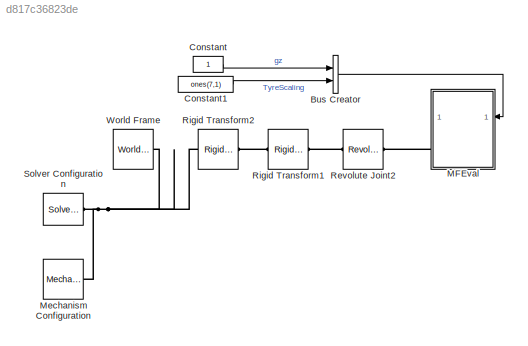
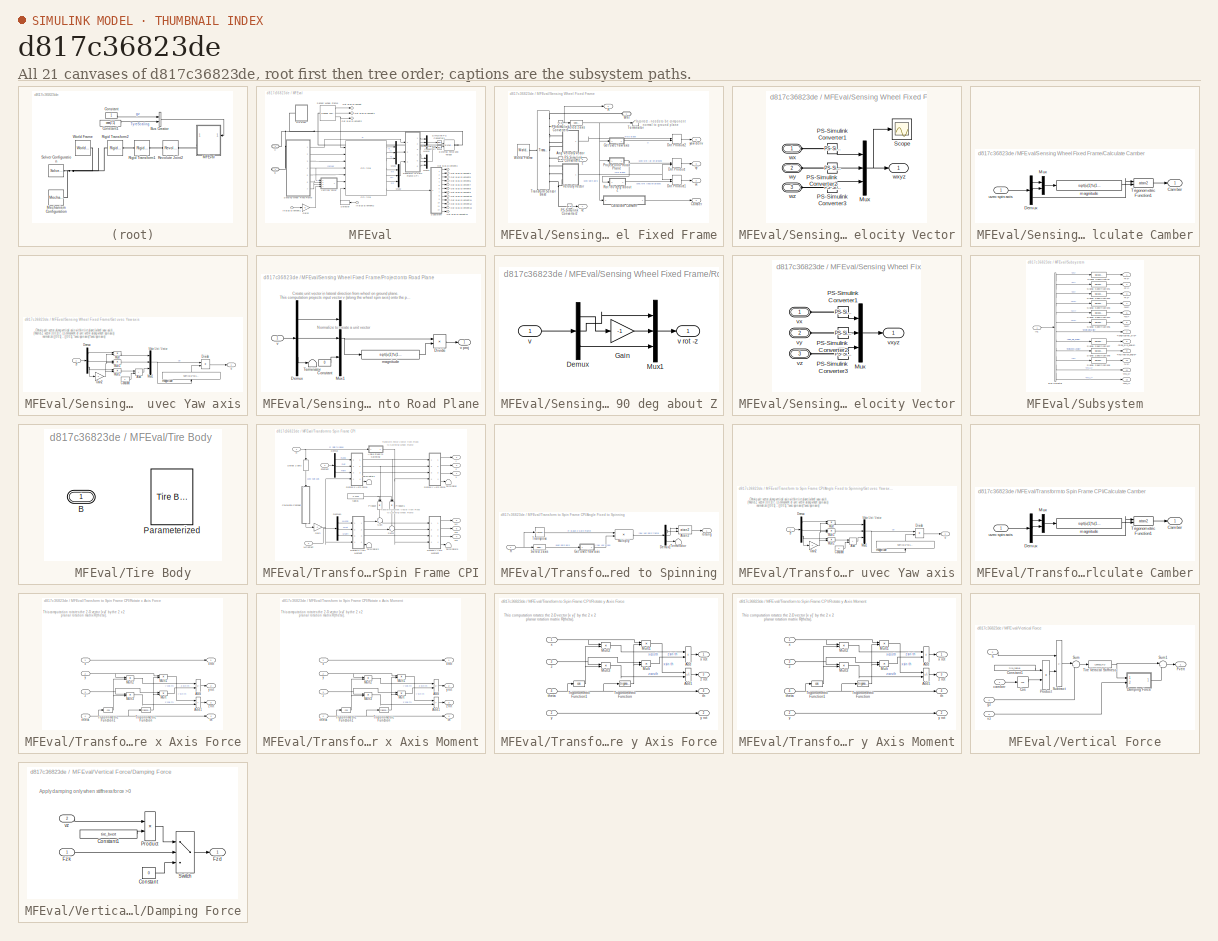
[diagram: thumbnail index - all 21 canvases of the model, root first then tree order]
MODEL slx_d817c36823de
KIND model
CONFIG AbsTol = auto
CONFIG EnableMultiTasking = off
CONFIG FixedStep = auto
CONFIG MaxStep = auto
CONFIG MinStep = auto
CONFIG RelTol = 1e-3
CONFIG SampleTimeConstraint = Unconstrained
CONFIG SolverName = VariableStepAuto
CONFIG StartTime = 0.0
CONFIG StopTime = 10.0
BLOCK [BusCreator] Bus Creator
  DisplayOption = bar
  InheritFromInputs = on
  Inputs = 2
  NameLocation = top
  Ports = [2, 1]
BLOCK [Constant] Constant
  NameLocation = top
BLOCK [Constant] Constant1
  NameLocation = top
  Value = ones(7,1)
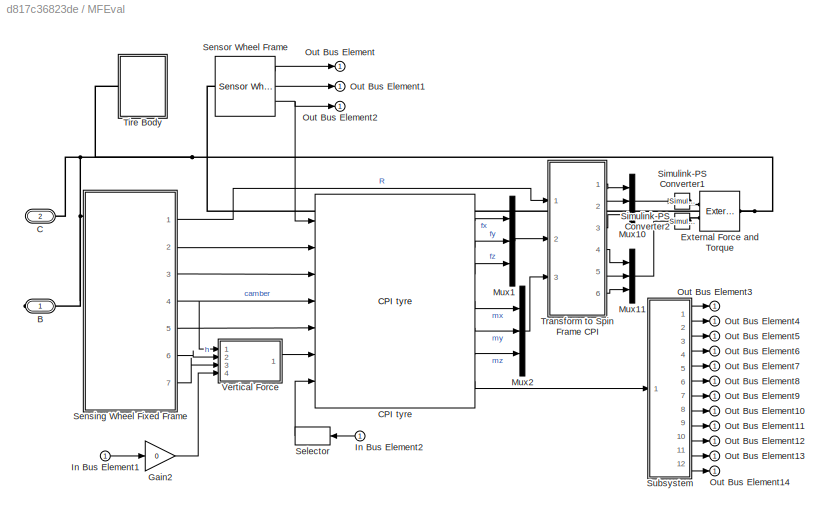
BLOCK [SubSystem] MFEval
  Ports = [1, 1, 0, 0, 0, 1, 1]
  RequestExecContextInheritance = off
  VariantControl = MFEval
BLOCK [PMIOPort] MFEval/B
  Side = Right
BLOCK [PMIOPort] MFEval/C
  Port = 2
  Side = Left
BLOCK [Reference] MFEval/CPI tyre  REF=mfeval_LIB/CPI tyre
  Description = Magic Formula 6.1.2 tyre model including relaxation length and transient calculations
  Ports = [7, 7]
  SourceBlock = mfeval_LIB/CPI tyre
  SourceProductName = MFeval Library
  SourceType = mfeval_CPI_tyre
BLOCK [Reference] MFEval/External Force and Torque  REF=sm_lib/Forces and
Torques/External Force
and Torque
  Ports = [0, 0, 0, 0, 0, 2, 1]
  SourceBlock = sm_lib/Forces and\nTorques/External Force\nand Torque
  SourceProductBaseCode = MS
  SourceType = External Force\nand Torque
BLOCK [Gain] MFEval/Gain2
  Gain = 0
BLOCK [Inport] MFEval/In Bus Element1
BLOCK [Inport] MFEval/In Bus Element2
BLOCK [Mux] MFEval/Mux1
  DisplayOption = bar
  Inputs = 3
  Ports = [3, 1]
BLOCK [Mux] MFEval/Mux10
  DisplayOption = bar
  Inputs = 3
  Ports = [3, 1]
BLOCK [Mux] MFEval/Mux11
  DisplayOption = bar
  Inputs = 3
  Ports = [3, 1]
BLOCK [Mux] MFEval/Mux2
  DisplayOption = bar
  Inputs = 3
  Ports = [3, 1]
BLOCK [Outport] MFEval/Out Bus Element
  VectorParamsAs1DForOutWhenUnconnected = off
BLOCK [Outport] MFEval/Out Bus Element1
  VectorParamsAs1DForOutWhenUnconnected = off
BLOCK [Outport] MFEval/Out Bus Element10
  VectorParamsAs1DForOutWhenUnconnected = off
BLOCK [Outport] MFEval/Out Bus Element11
  VectorParamsAs1DForOutWhenUnconnected = off
BLOCK [Outport] MFEval/Out Bus Element12
  VectorParamsAs1DForOutWhenUnconnected = off
BLOCK [Outport] MFEval/Out Bus Element13
  VectorParamsAs1DForOutWhenUnconnected = off
BLOCK [Outport] MFEval/Out Bus Element14
  VectorParamsAs1DForOutWhenUnconnected = off
BLOCK [Outport] MFEval/Out Bus Element2
  VectorParamsAs1DForOutWhenUnconnected = off
BLOCK [Outport] MFEval/Out Bus Element3
  VectorParamsAs1DForOutWhenUnconnected = off
BLOCK [Outport] MFEval/Out Bus Element4
  VectorParamsAs1DForOutWhenUnconnected = off
BLOCK [Outport] MFEval/Out Bus Element5
  VectorParamsAs1DForOutWhenUnconnected = off
BLOCK [Outport] MFEval/Out Bus Element6
  VectorParamsAs1DForOutWhenUnconnected = off
BLOCK [Outport] MFEval/Out Bus Element7
  VectorParamsAs1DForOutWhenUnconnected = off
BLOCK [Outport] MFEval/Out Bus Element8
  VectorParamsAs1DForOutWhenUnconnected = off
BLOCK [Outport] MFEval/Out Bus Element9
  VectorParamsAs1DForOutWhenUnconnected = off
BLOCK [Selector] MFEval/Selector
  IndexOptions = Index vector (dialog)
  Indices = [1]
  InputPortWidth = 7
  OutputSizes = 1
  Ports = [1, 1]
BLOCK [SubSystem] MFEval/Sensing Wheel Fixed Frame
  Ports = [0, 7, 0, 0, 0, 1]
  RequestExecContextInheritance = off
BLOCK [SubSystem] MFEval/Sensing Wheel Fixed Frame/Ang Velocity Vector
  Ports = [0, 1, 0, 0, 0, 3]
  RequestExecContextInheritance = off
BLOCK [Mux] MFEval/Sensing Wheel Fixed Frame/Ang Velocity Vector/Mux
  DisplayOption = bar
  Inputs = 3
  Ports = [3, 1]
BLOCK [Reference] MFEval/Sensing Wheel Fixed Frame/Ang Velocity Vector/PS-Simulink Converter1  REF=nesl_utility/PS-Simulink
Converter
  Ports = [0, 1, 0, 0, 0, 1]
  SourceBlock = nesl_utility/PS-Simulink\nConverter
  SourceProductBaseCode = SS,PW,VE
  SourceType = PS-Simulink\nConverter
BLOCK [Reference] MFEval/Sensing Wheel Fixed Frame/Ang Velocity Vector/PS-Simulink Converter2  REF=nesl_utility/PS-Simulink
Converter
  Ports = [0, 1, 0, 0, 0, 1]
  SourceBlock = nesl_utility/PS-Simulink\nConverter
  SourceProductBaseCode = SS,PW,VE
  SourceType = PS-Simulink\nConverter
BLOCK [Reference] MFEval/Sensing Wheel Fixed Frame/Ang Velocity Vector/PS-Simulink Converter3  REF=nesl_utility/PS-Simulink
Converter
  Ports = [0, 1, 0, 0, 0, 1]
  SourceBlock = nesl_utility/PS-Simulink\nConverter
  SourceProductBaseCode = SS,PW,VE
  SourceType = PS-Simulink\nConverter
BLOCK [Scope] MFEval/Sensing Wheel Fixed Frame/Ang Velocity Vector/Scope
  Floating = off
  NumInputPorts = 1
  Ports = [1]
  ScopeSpecificationString = Simulink.scopes.TimeScopeBlockCfg('CurrentConfiguration', extmgr.ConfigurationSet(extmgr.Configuration('Core','General UI',true),extmgr.Configuration('Core','Source UI',true),extmgr.Configuration('Sources','WiredSimulink',true,'DataLoggingVariableName','ScopeData4'),extmgr.Configuration('Visuals','Time Domain',true,'SerializedDisplays',{struct('MinYLimReal','-5.8089','MaxYLimReal','30.87099','YLab...<+1436ch>
BLOCK [PMIOPort] MFEval/Sensing Wheel Fixed Frame/Ang Velocity Vector/wx
  Side = Left
BLOCK [Outport] MFEval/Sensing Wheel Fixed Frame/Ang Velocity Vector/wxyz
  VectorParamsAs1DForOutWhenUnconnected = off
BLOCK [PMIOPort] MFEval/Sensing Wheel Fixed Frame/Ang Velocity Vector/wy
  Port = 2
  Side = Left
BLOCK [PMIOPort] MFEval/Sensing Wheel Fixed Frame/Ang Velocity Vector/wz
  Port = 3
  Side = Left
BLOCK [SubSystem] MFEval/Sensing Wheel Fixed Frame/Calculate Camber
  Ports = [1, 1]
  RequestExecContextInheritance = off
BLOCK [Outport] MFEval/Sensing Wheel Fixed Frame/Calculate Camber/Camber
  VectorParamsAs1DForOutWhenUnconnected = off
BLOCK [Demux] MFEval/Sensing Wheel Fixed Frame/Calculate Camber/Demux
  Outputs = 3
  Ports = [1, 3]
BLOCK [Mux] MFEval/Sensing Wheel Fixed Frame/Calculate Camber/Mux
  DisplayOption = bar
  Inputs = 2
  Ports = [2, 1]
BLOCK [Trigonometry] MFEval/Sensing Wheel Fixed Frame/Calculate Camber/Trigonometric Function1
  Operator = atan2
  Ports = [2, 1]
BLOCK [Fcn] MFEval/Sensing Wheel Fixed Frame/Calculate Camber/magnitude
  Expr = sqrt(u(1)*u(1)+u(2)*u(2))
BLOCK [Inport] MFEval/Sensing Wheel Fixed Frame/Calculate Camber/uvec spin axis
BLOCK [Outport] MFEval/Sensing Wheel Fixed Frame/Camber
  Port = 4
  VectorParamsAs1DForOutWhenUnconnected = off
BLOCK [DotProduct] MFEval/Sensing Wheel Fixed Frame/Dot Product
  OutDataTypeStr = Inherit: Inherit via internal rule
BLOCK [DotProduct] MFEval/Sensing Wheel Fixed Frame/Dot Product1
  OutDataTypeStr = Inherit: Inherit via internal rule
BLOCK [DotProduct] MFEval/Sensing Wheel Fixed Frame/Dot Product2
  OutDataTypeStr = Inherit: Inherit via internal rule
BLOCK [SubSystem] MFEval/Sensing Wheel Fixed Frame/Get uvec Yaw axis
  Ports = [1, 1]
  RequestExecContextInheritance = off
BLOCK [Sum] MFEval/Sensing Wheel Fixed Frame/Get uvec Yaw axis/Add
  IconShape = rectangular
  Ports = [2, 1]
BLOCK [Constant] MFEval/Sensing Wheel Fixed Frame/Get uvec Yaw axis/Constant
BLOCK [Demux] MFEval/Sensing Wheel Fixed Frame/Get uvec Yaw axis/Demux
  Outputs = 3
  Ports = [1, 3]
BLOCK [Product] MFEval/Sensing Wheel Fixed Frame/Get uvec Yaw axis/Divide
  Inputs = */
  Ports = [2, 1]
BLOCK [Gain] MFEval/Sensing Wheel Fixed Frame/Get uvec Yaw axis/Gain2
  Gain = -1
BLOCK [Product] MFEval/Sensing Wheel Fixed Frame/Get uvec Yaw axis/Mult
  Inputs = **
  Ports = [2, 1]
BLOCK [Product] MFEval/Sensing Wheel Fixed Frame/Get uvec Yaw axis/Mult1
  Inputs = **
  Ports = [2, 1]
BLOCK [Product] MFEval/Sensing Wheel Fixed Frame/Get uvec Yaw axis/Mult2
  Inputs = **
  Ports = [2, 1]
BLOCK [Mux] MFEval/Sensing Wheel Fixed Frame/Get uvec Yaw axis/Mux1
  DisplayOption = bar
  Inputs = 3
  Ports = [3, 1]
BLOCK [Fcn] MFEval/Sensing Wheel Fixed Frame/Get uvec Yaw axis/magnitude
  Expr = sqrt(u(1)*u(1)+u(2)*u(2)+u(3)*u(3))
  NameLocation = right
BLOCK [Outport] MFEval/Sensing Wheel Fixed Frame/Get uvec Yaw axis/u
  VectorParamsAs1DForOutWhenUnconnected = off
BLOCK [Inport] MFEval/Sensing Wheel Fixed Frame/Get uvec Yaw axis/zf
BLOCK [Reference] MFEval/Sensing Wheel Fixed Frame/PS-Simulink Converter1  REF=nesl_utility/PS-Simulink
Converter
  Ports = [0, 1, 0, 0, 0, 1]
  SourceBlock = nesl_utility/PS-Simulink\nConverter
  SourceProductBaseCode = SS,PW,VE
  SourceType = PS-Simulink\nConverter
BLOCK [Reference] MFEval/Sensing Wheel Fixed Frame/PS-Simulink Converter2  REF=nesl_utility/PS-Simulink
Converter
  Ports = [0, 1, 0, 0, 0, 1]
  SourceBlock = nesl_utility/PS-Simulink\nConverter
  SourceProductBaseCode = SS,PW,VE
  SourceType = PS-Simulink\nConverter
BLOCK [Reference] MFEval/Sensing Wheel Fixed Frame/PS-Simulink Converter6  REF=nesl_utility/PS-Simulink
Converter
  Ports = [0, 1, 0, 0, 0, 1]
  SourceBlock = nesl_utility/PS-Simulink\nConverter
  SourceProductBaseCode = SS,PW,VE
  SourceType = PS-Simulink\nConverter
BLOCK [SubSystem] MFEval/Sensing Wheel Fixed Frame/Project onto Road Plane
  Ports = [1, 1]
  RequestExecContextInheritance = off
BLOCK [Constant] MFEval/Sensing Wheel Fixed Frame/Project onto Road Plane/Constant
  Value = 0
BLOCK [Demux] MFEval/Sensing Wheel Fixed Frame/Project onto Road Plane/Demux
  Outputs = 3
  Ports = [1, 3]
BLOCK [Product] MFEval/Sensing Wheel Fixed Frame/Project onto Road Plane/Divide
  Inputs = */
  Ports = [2, 1]
BLOCK [Mux] MFEval/Sensing Wheel Fixed Frame/Project onto Road Plane/Mux1
  DisplayOption = bar
  Inputs = 3
  Ports = [3, 1]
BLOCK [Terminator] MFEval/Sensing Wheel Fixed Frame/Project onto Road Plane/Terminator
BLOCK [Fcn] MFEval/Sensing Wheel Fixed Frame/Project onto Road Plane/magnitude
  Expr = sqrt(u(1)*u(1)+u(2)*u(2))
BLOCK [Inport] MFEval/Sensing Wheel Fixed Frame/Project onto Road Plane/v
BLOCK [Outport] MFEval/Sensing Wheel Fixed Frame/Project onto Road Plane/v proj
  VectorParamsAs1DForOutWhenUnconnected = off
BLOCK [Outport] MFEval/Sensing Wheel Fixed Frame/R
  VectorParamsAs1DForOutWhenUnconnected = off
BLOCK [SubSystem] MFEval/Sensing Wheel Fixed Frame/Rot -90 deg about Z
  Ports = [1, 1]
  RequestExecContextInheritance = off
BLOCK [Demux] MFEval/Sensing Wheel Fixed Frame/Rot -90 deg about Z/Demux
  Outputs = 3
  Ports = [1, 3]
BLOCK [Gain] MFEval/Sensing Wheel Fixed Frame/Rot -90 deg about Z/Gain
  Gain = -1
BLOCK [Mux] MFEval/Sensing Wheel Fixed Frame/Rot -90 deg about Z/Mux1
  DisplayOption = bar
  Inputs = 3
  Ports = [3, 1]
BLOCK [Inport] MFEval/Sensing Wheel Fixed Frame/Rot -90 deg about Z/v
BLOCK [Outport] MFEval/Sensing Wheel Fixed Frame/Rot -90 deg about Z/v rot -z
  VectorParamsAs1DForOutWhenUnconnected = off
BLOCK [Selector] MFEval/Sensing Wheel Fixed Frame/Select z axis
  IndexOptions = Index vector (dialog),Index vector (dialog)
  Indices = [1 2 3],3
  InputPortWidth = 2
  NumberOfDimensions = 2
  OutputSizes = 1,1
  Ports = [1, 1]
BLOCK [Terminator] MFEval/Sensing Wheel Fixed Frame/Terminator
BLOCK [Reference] MFEval/Sensing Wheel Fixed Frame/Transform Sensor Base  REF=sm_lib/Frames and
Transforms/Transform
Sensor
  Ports = [0, 0, 0, 0, 0, 1, 9]
  SourceBlock = sm_lib/Frames and\nTransforms/Transform\nSensor
  SourceProductBaseCode = MS
  SourceType = Transform\nSensor
BLOCK [SubSystem] MFEval/Sensing Wheel Fixed Frame/Velocity Vector
  Ports = [0, 1, 0, 0, 0, 3]
  RequestExecContextInheritance = off
BLOCK [Mux] MFEval/Sensing Wheel Fixed Frame/Velocity Vector/Mux
  DisplayOption = bar
  Inputs = 3
  Ports = [3, 1]
BLOCK [Reference] MFEval/Sensing Wheel Fixed Frame/Velocity Vector/PS-Simulink Converter1  REF=nesl_utility/PS-Simulink
Converter
  Ports = [0, 1, 0, 0, 0, 1]
  SourceBlock = nesl_utility/PS-Simulink\nConverter
  SourceProductBaseCode = SS,PW,VE
  SourceType = PS-Simulink\nConverter
BLOCK [Reference] MFEval/Sensing Wheel Fixed Frame/Velocity Vector/PS-Simulink Converter2  REF=nesl_utility/PS-Simulink
Converter
  Ports = [0, 1, 0, 0, 0, 1]
  SourceBlock = nesl_utility/PS-Simulink\nConverter
  SourceProductBaseCode = SS,PW,VE
  SourceType = PS-Simulink\nConverter
BLOCK [Reference] MFEval/Sensing Wheel Fixed Frame/Velocity Vector/PS-Simulink Converter3  REF=nesl_utility/PS-Simulink
Converter
  Ports = [0, 1, 0, 0, 0, 1]
  SourceBlock = nesl_utility/PS-Simulink\nConverter
  SourceProductBaseCode = SS,PW,VE
  SourceType = PS-Simulink\nConverter
BLOCK [PMIOPort] MFEval/Sensing Wheel Fixed Frame/Velocity Vector/vx
  Side = Left
BLOCK [Outport] MFEval/Sensing Wheel Fixed Frame/Velocity Vector/vxyz
  VectorParamsAs1DForOutWhenUnconnected = off
BLOCK [PMIOPort] MFEval/Sensing Wheel Fixed Frame/Velocity Vector/vy
  Port = 2
  Side = Left
BLOCK [PMIOPort] MFEval/Sensing Wheel Fixed Frame/Velocity Vector/vz
  Port = 3
  Side = Left
BLOCK [PMIOPort] MFEval/Sensing Wheel Fixed Frame/Whl
  NameLocation = top
  Side = Left
BLOCK [Reference] MFEval/Sensing Wheel Fixed Frame/World Frame  REF=sm_lib/Frames and
Transforms/World Frame
  Ports = [0, 0, 0, 0, 0, 0, 1]
  SourceBlock = sm_lib/Frames and\nTransforms/World Frame
  SourceProductBaseCode = MS
  SourceType = World Frame
BLOCK [Outport] MFEval/Sensing Wheel Fixed Frame/vx
  Port = 2
  VectorParamsAs1DForOutWhenUnconnected = off
BLOCK [Outport] MFEval/Sensing Wheel Fixed Frame/vy
  Port = 3
  VectorParamsAs1DForOutWhenUnconnected = off
BLOCK [Outport] MFEval/Sensing Wheel Fixed Frame/vz
  Port = 7
  VectorParamsAs1DForOutWhenUnconnected = off
BLOCK [Outport] MFEval/Sensing Wheel Fixed Frame/yaw deriv
  Port = 5
  VectorParamsAs1DForOutWhenUnconnected = off
BLOCK [Outport] MFEval/Sensing Wheel Fixed Frame/z
  Port = 6
  VectorParamsAs1DForOutWhenUnconnected = off
BLOCK [Reference] MFEval/Sensor Wheel Frame  REF=sm_car_lib/Tires/Sensor Wheel Frame  (lib defined in slx_05426f0848b6, slx_5dc2867fb1c9)
  Ports = [0, 3, 0, 0, 0, 1]
  SourceBlock = sm_car_lib/Tires/Sensor Wheel Frame
  SourceType = SubSystem
BLOCK [Reference] MFEval/Simulink-PS Converter1  REF=nesl_utility/Simulink-PS
Converter
  Ports = [1, 0, 0, 0, 0, 0, 1]
  SourceBlock = nesl_utility/Simulink-PS\nConverter
  SourceProductBaseCode = SS,PW,VE
  SourceType = Simulink-PS\nConverter
BLOCK [Reference] MFEval/Simulink-PS Converter2  REF=nesl_utility/Simulink-PS
Converter
  Ports = [1, 0, 0, 0, 0, 0, 1]
  SourceBlock = nesl_utility/Simulink-PS\nConverter
  SourceProductBaseCode = SS,PW,VE
  SourceType = Simulink-PS\nConverter
BLOCK [SubSystem] MFEval/Subsystem
  Ports = [1, 12]
  RequestExecContextInheritance = off
BLOCK [Outport] MFEval/Subsystem/<Fx>
  VectorParamsAs1DForOutWhenUnconnected = off
BLOCK [Outport] MFEval/Subsystem/<Fy>
  Port = 2
  VectorParamsAs1DForOutWhenUnconnected = off
BLOCK [Outport] MFEval/Subsystem/<Fz>
  Port = 3
  VectorParamsAs1DForOutWhenUnconnected = off
BLOCK [Outport] MFEval/Subsystem/<Mx>
  Port = 4
  VectorParamsAs1DForOutWhenUnconnected = off
BLOCK [Outport] MFEval/Subsystem/<My>
  Port = 5
  VectorParamsAs1DForOutWhenUnconnected = off
BLOCK [Outport] MFEval/Subsystem/<Mz>
  Port = 6
  VectorParamsAs1DForOutWhenUnconnected = off
BLOCK [Outport] MFEval/Subsystem/<Vx>
  Port = 10
  VectorParamsAs1DForOutWhenUnconnected = off
BLOCK [Outport] MFEval/Subsystem/<inclination_angle>
  Port = 9
  VectorParamsAs1DForOutWhenUnconnected = off
BLOCK [Outport] MFEval/Subsystem/<longitudinal_slip>
  Port = 7
  VectorParamsAs1DForOutWhenUnconnected = off
BLOCK [Outport] MFEval/Subsystem/<mu_x>
  Port = 11
  VectorParamsAs1DForOutWhenUnconnected = off
BLOCK [Outport] MFEval/Subsystem/<mu_y>
  Port = 12
  VectorParamsAs1DForOutWhenUnconnected = off
BLOCK [Outport] MFEval/Subsystem/<side_slip_angle>
  Port = 8
  VectorParamsAs1DForOutWhenUnconnected = off
BLOCK [BusSelector] MFEval/Subsystem/Bus Selector
  OutputSignals = Fx,Fy,Fz,Mx,My,Mz,longitudinal_slip,side_slip_angle,inclination_angle,Vx,mu_x,mu_y
  Ports = [1, 12]
BLOCK [Inport] MFEval/Subsystem/In1
BLOCK [SignalSpecification] MFEval/Subsystem/Signal Specification
  Unit = N
BLOCK [SignalSpecification] MFEval/Subsystem/Signal Specification1
  Unit = N
BLOCK [SignalSpecification] MFEval/Subsystem/Signal Specification2
  Unit = N
BLOCK [SignalSpecification] MFEval/Subsystem/Signal Specification3
  Unit = N*m
BLOCK [SignalSpecification] MFEval/Subsystem/Signal Specification4
  Unit = N*m
BLOCK [SignalSpecification] MFEval/Subsystem/Signal Specification5
  Unit = N*m
BLOCK [SignalSpecification] MFEval/Subsystem/Signal Specification6
  Unit = m/s
BLOCK [SignalSpecification] MFEval/Subsystem/Signal Specification7
  Unit = rad
BLOCK [SignalSpecification] MFEval/Subsystem/Signal Specification8
  Unit = rad
BLOCK [SubSystem] MFEval/Tire Body
  LabelModeActiveChoice = Parameterized
  Ports = [0, 0, 0, 0, 0, 1]
  RequestExecContextInheritance = off
  Variant = on
  VariantControlMode = label
BLOCK [PMIOPort] MFEval/Tire Body/B
  Side = Left
BLOCK [Reference] MFEval/Tire Body/Parameterized  REF=TireBody_Parameterized/Tire Body
  Ports = [0, 0, 0, 0, 0, 1]
  SourceBlock = TireBody_Parameterized/Tire Body
  SourceType = Parameterized Tire Solid
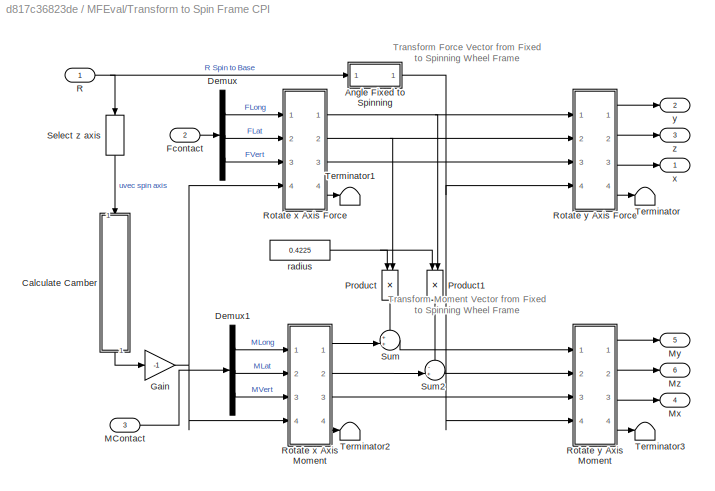
BLOCK [SubSystem] MFEval/Transform to Spin Frame CPI
  Ports = [3, 6]
  RequestExecContextInheritance = off
BLOCK [SubSystem] MFEval/Transform to Spin Frame CPI/Angle Fixed to Spinning
  NameLocation = top
  Ports = [1, 1]
  RequestExecContextInheritance = off
BLOCK [Trigonometry] MFEval/Transform to Spin Frame CPI/Angle Fixed to Spinning/Atan2
  Operator = atan2
  Ports = [2, 1]
BLOCK [Demux] MFEval/Transform to Spin Frame CPI/Angle Fixed to Spinning/Demux1
  Outputs = 3
  Ports = [1, 3]
BLOCK [SubSystem] MFEval/Transform to Spin Frame CPI/Angle Fixed to Spinning/Get uvec Yaw axis
  Ports = [1, 1]
  RequestExecContextInheritance = off
BLOCK [Sum] MFEval/Transform to Spin Frame CPI/Angle Fixed to Spinning/Get uvec Yaw axis/Add
  IconShape = rectangular
  Ports = [2, 1]
BLOCK [Constant] MFEval/Transform to Spin Frame CPI/Angle Fixed to Spinning/Get uvec Yaw axis/Constant
BLOCK [Demux] MFEval/Transform to Spin Frame CPI/Angle Fixed to Spinning/Get uvec Yaw axis/Demux
  Outputs = 3
  Ports = [1, 3]
BLOCK [Product] MFEval/Transform to Spin Frame CPI/Angle Fixed to Spinning/Get uvec Yaw axis/Divide
  Inputs = */
  Ports = [2, 1]
BLOCK [Gain] MFEval/Transform to Spin Frame CPI/Angle Fixed to Spinning/Get uvec Yaw axis/Gain2
  Gain = -1
BLOCK [Product] MFEval/Transform to Spin Frame CPI/Angle Fixed to Spinning/Get uvec Yaw axis/Mult
  Inputs = **
  Ports = [2, 1]
BLOCK [Product] MFEval/Transform to Spin Frame CPI/Angle Fixed to Spinning/Get uvec Yaw axis/Mult1
  Inputs = **
  Ports = [2, 1]
BLOCK [Product] MFEval/Transform to Spin Frame CPI/Angle Fixed to Spinning/Get uvec Yaw axis/Mult2
  Inputs = **
  Ports = [2, 1]
BLOCK [Mux] MFEval/Transform to Spin Frame CPI/Angle Fixed to Spinning/Get uvec Yaw axis/Mux1
  DisplayOption = bar
  Inputs = 3
  Ports = [3, 1]
BLOCK [Fcn] MFEval/Transform to Spin Frame CPI/Angle Fixed to Spinning/Get uvec Yaw axis/magnitude
  Expr = sqrt(u(1)*u(1)+u(2)*u(2)+u(3)*u(3))
  NameLocation = right
BLOCK [Outport] MFEval/Transform to Spin Frame CPI/Angle Fixed to Spinning/Get uvec Yaw axis/u
  VectorParamsAs1DForOutWhenUnconnected = off
BLOCK [Inport] MFEval/Transform to Spin Frame CPI/Angle Fixed to Spinning/Get uvec Yaw axis/zf
BLOCK [Product] MFEval/Transform to Spin Frame CPI/Angle Fixed to Spinning/Multiply
  Inputs = **
  Multiplication = Matrix(*)
  Ports = [2, 1]
BLOCK [Inport] MFEval/Transform to Spin Frame CPI/Angle Fixed to Spinning/R
BLOCK [Selector] MFEval/Transform to Spin Frame CPI/Angle Fixed to Spinning/Select z axis
  IndexOptions = Index vector (dialog),Index vector (dialog)
  Indices = [1 2 3],3
  InputPortWidth = 2
  NumberOfDimensions = 2
  OutputSizes = 1,1
  Ports = [1, 1]
BLOCK [Terminator] MFEval/Transform to Spin Frame CPI/Angle Fixed to Spinning/Terminator
BLOCK [Math] MFEval/Transform to Spin Frame CPI/Angle Fixed to Spinning/Transpose
  Operator = transpose
  Ports = [1, 1]
  SignedPower = on
BLOCK [Outport] MFEval/Transform to Spin Frame CPI/Angle Fixed to Spinning/rotang
  VectorParamsAs1DForOutWhenUnconnected = off
BLOCK [SubSystem] MFEval/Transform to Spin Frame CPI/Calculate Camber
  NameLocation = left
  Ports = [1, 1]
  RequestExecContextInheritance = off
BLOCK [Outport] MFEval/Transform to Spin Frame CPI/Calculate Camber/Camber
  VectorParamsAs1DForOutWhenUnconnected = off
BLOCK [Demux] MFEval/Transform to Spin Frame CPI/Calculate Camber/Demux
  Outputs = 3
  Ports = [1, 3]
BLOCK [Mux] MFEval/Transform to Spin Frame CPI/Calculate Camber/Mux
  DisplayOption = bar
  Inputs = 2
  Ports = [2, 1]
BLOCK [Trigonometry] MFEval/Transform to Spin Frame CPI/Calculate Camber/Trigonometric Function1
  Operator = atan2
  Ports = [2, 1]
BLOCK [Fcn] MFEval/Transform to Spin Frame CPI/Calculate Camber/magnitude
  Expr = sqrt(u(1)*u(1)+u(2)*u(2))
BLOCK [Inport] MFEval/Transform to Spin Frame CPI/Calculate Camber/uvec spin axis
BLOCK [Demux] MFEval/Transform to Spin Frame CPI/Demux
  Outputs = 3
  Ports = [1, 3]
BLOCK [Demux] MFEval/Transform to Spin Frame CPI/Demux1
  Outputs = 3
  Ports = [1, 3]
BLOCK [Inport] MFEval/Transform to Spin Frame CPI/Fcontact
  Port = 2
BLOCK [Gain] MFEval/Transform to Spin Frame CPI/Gain
  Gain = -1
BLOCK [Inport] MFEval/Transform to Spin Frame CPI/MContact
  Port = 3
BLOCK [Outport] MFEval/Transform to Spin Frame CPI/Mx
  Port = 4
  VectorParamsAs1DForOutWhenUnconnected = off
BLOCK [Outport] MFEval/Transform to Spin Frame CPI/My
  Port = 5
  VectorParamsAs1DForOutWhenUnconnected = off
BLOCK [Outport] MFEval/Transform to Spin Frame CPI/Mz
  Port = 6
  VectorParamsAs1DForOutWhenUnconnected = off
BLOCK [Product] MFEval/Transform to Spin Frame CPI/Product
  NameLocation = left
  Ports = [2, 1]
BLOCK [Product] MFEval/Transform to Spin Frame CPI/Product1
  NameLocation = left
  Ports = [2, 1]
BLOCK [Inport] MFEval/Transform to Spin Frame CPI/R
BLOCK [SubSystem] MFEval/Transform to Spin Frame CPI/Rotate x Axis Force
  Ports = [4, 4]
  RequestExecContextInheritance = off
BLOCK [Sum] MFEval/Transform to Spin Frame CPI/Rotate x Axis Force/Add
  IconShape = rectangular
  Inputs = +-
  Ports = [2, 1]
BLOCK [Sum] MFEval/Transform to Spin Frame CPI/Rotate x Axis Force/Add1
  IconShape = rectangular
  Ports = [2, 1]
BLOCK [Product] MFEval/Transform to Spin Frame CPI/Rotate x Axis Force/Mult
  Inputs = **
  Ports = [2, 1]
BLOCK [Product] MFEval/Transform to Spin Frame CPI/Rotate x Axis Force/Mult1
  Inputs = **
  Ports = [2, 1]
BLOCK [Product] MFEval/Transform to Spin Frame CPI/Rotate x Axis Force/Mult2
  Inputs = **
  Ports = [2, 1]
BLOCK [Product] MFEval/Transform to Spin Frame CPI/Rotate x Axis Force/Mult3
  Inputs = **
  Ports = [2, 1]
BLOCK [Trigonometry] MFEval/Transform to Spin Frame CPI/Rotate x Axis Force/Trigonometric Function
  Ports = [1, 1]
BLOCK [Trigonometry] MFEval/Transform to Spin Frame CPI/Rotate x Axis Force/Trigonometric Function1
  Operator = cos
  Ports = [1, 1]
BLOCK [Outport] MFEval/Transform to Spin Frame CPI/Rotate x Axis Force/th
  Port = 4
  VectorParamsAs1DForOutWhenUnconnected = off
BLOCK [Inport] MFEval/Transform to Spin Frame CPI/Rotate x Axis Force/theta
  Port = 4
BLOCK [Inport] MFEval/Transform to Spin Frame CPI/Rotate x Axis Force/x
BLOCK [Outport] MFEval/Transform to Spin Frame CPI/Rotate x Axis Force/x rot
  VectorParamsAs1DForOutWhenUnconnected = off
BLOCK [Inport] MFEval/Transform to Spin Frame CPI/Rotate x Axis Force/y
  Port = 2
BLOCK [Outport] MFEval/Transform to Spin Frame CPI/Rotate x Axis Force/y rot
  Port = 2
  VectorParamsAs1DForOutWhenUnconnected = off
BLOCK [Inport] MFEval/Transform to Spin Frame CPI/Rotate x Axis Force/z
  Port = 3
BLOCK [Outport] MFEval/Transform to Spin Frame CPI/Rotate x Axis Force/z rot
  Port = 3
  VectorParamsAs1DForOutWhenUnconnected = off
BLOCK [SubSystem] MFEval/Transform to Spin Frame CPI/Rotate x Axis Moment
  Ports = [4, 4]
  RequestExecContextInheritance = off
BLOCK [Sum] MFEval/Transform to Spin Frame CPI/Rotate x Axis Moment/Add
  IconShape = rectangular
  Inputs = +-
  Ports = [2, 1]
BLOCK [Sum] MFEval/Transform to Spin Frame CPI/Rotate x Axis Moment/Add1
  IconShape = rectangular
  Ports = [2, 1]
BLOCK [Product] MFEval/Transform to Spin Frame CPI/Rotate x Axis Moment/Mult
  Inputs = **
  Ports = [2, 1]
BLOCK [Product] MFEval/Transform to Spin Frame CPI/Rotate x Axis Moment/Mult1
  Inputs = **
  Ports = [2, 1]
BLOCK [Product] MFEval/Transform to Spin Frame CPI/Rotate x Axis Moment/Mult2
  Inputs = **
  Ports = [2, 1]
BLOCK [Product] MFEval/Transform to Spin Frame CPI/Rotate x Axis Moment/Mult3
  Inputs = **
  Ports = [2, 1]
BLOCK [Trigonometry] MFEval/Transform to Spin Frame CPI/Rotate x Axis Moment/Trigonometric Function
  Ports = [1, 1]
BLOCK [Trigonometry] MFEval/Transform to Spin Frame CPI/Rotate x Axis Moment/Trigonometric Function1
  Operator = cos
  Ports = [1, 1]
BLOCK [Outport] MFEval/Transform to Spin Frame CPI/Rotate x Axis Moment/th
  Port = 4
  VectorParamsAs1DForOutWhenUnconnected = off
BLOCK [Inport] MFEval/Transform to Spin Frame CPI/Rotate x Axis Moment/theta
  Port = 4
BLOCK [Inport] MFEval/Transform to Spin Frame CPI/Rotate x Axis Moment/x
BLOCK [Outport] MFEval/Transform to Spin Frame CPI/Rotate x Axis Moment/x rot
  VectorParamsAs1DForOutWhenUnconnected = off
BLOCK [Inport] MFEval/Transform to Spin Frame CPI/Rotate x Axis Moment/y
  Port = 2
BLOCK [Outport] MFEval/Transform to Spin Frame CPI/Rotate x Axis Moment/y rot
  Port = 2
  VectorParamsAs1DForOutWhenUnconnected = off
BLOCK [Inport] MFEval/Transform to Spin Frame CPI/Rotate x Axis Moment/z
  Port = 3
BLOCK [Outport] MFEval/Transform to Spin Frame CPI/Rotate x Axis Moment/z rot
  Port = 3
  VectorParamsAs1DForOutWhenUnconnected = off
BLOCK [SubSystem] MFEval/Transform to Spin Frame CPI/Rotate y Axis Force
  Ports = [4, 4]
  RequestExecContextInheritance = off
BLOCK [Sum] MFEval/Transform to Spin Frame CPI/Rotate y Axis Force/Add
  IconShape = rectangular
  Ports = [2, 1]
BLOCK [Sum] MFEval/Transform to Spin Frame CPI/Rotate y Axis Force/Add1
  IconShape = rectangular
  Inputs = -+
  Ports = [2, 1]
BLOCK [Product] MFEval/Transform to Spin Frame CPI/Rotate y Axis Force/Mult
  Inputs = **
  Ports = [2, 1]
BLOCK [Product] MFEval/Transform to Spin Frame CPI/Rotate y Axis Force/Mult1
  Inputs = **
  Ports = [2, 1]
BLOCK [Product] MFEval/Transform to Spin Frame CPI/Rotate y Axis Force/Mult2
  Inputs = **
  Ports = [2, 1]
BLOCK [Product] MFEval/Transform to Spin Frame CPI/Rotate y Axis Force/Mult3
  Inputs = **
  Ports = [2, 1]
BLOCK [Trigonometry] MFEval/Transform to Spin Frame CPI/Rotate y Axis Force/Trigonometric Function
  Ports = [1, 1]
BLOCK [Trigonometry] MFEval/Transform to Spin Frame CPI/Rotate y Axis Force/Trigonometric Function1
  Operator = cos
  Ports = [1, 1]
BLOCK [Outport] MFEval/Transform to Spin Frame CPI/Rotate y Axis Force/th
  Port = 4
  VectorParamsAs1DForOutWhenUnconnected = off
BLOCK [Inport] MFEval/Transform to Spin Frame CPI/Rotate y Axis Force/theta
  Port = 4
BLOCK [Inport] MFEval/Transform to Spin Frame CPI/Rotate y Axis Force/x
BLOCK [Outport] MFEval/Transform to Spin Frame CPI/Rotate y Axis Force/x rot
  VectorParamsAs1DForOutWhenUnconnected = off
BLOCK [Inport] MFEval/Transform to Spin Frame CPI/Rotate y Axis Force/y
  Port = 2
BLOCK [Outport] MFEval/Transform to Spin Frame CPI/Rotate y Axis Force/y rot
  Port = 2
  VectorParamsAs1DForOutWhenUnconnected = off
BLOCK [Inport] MFEval/Transform to Spin Frame CPI/Rotate y Axis Force/z
  Port = 3
BLOCK [Outport] MFEval/Transform to Spin Frame CPI/Rotate y Axis Force/z rot
  Port = 3
  VectorParamsAs1DForOutWhenUnconnected = off
BLOCK [SubSystem] MFEval/Transform to Spin Frame CPI/Rotate y Axis Moment
  Ports = [4, 4]
  RequestExecContextInheritance = off
BLOCK [Sum] MFEval/Transform to Spin Frame CPI/Rotate y Axis Moment/Add
  IconShape = rectangular
  Ports = [2, 1]
BLOCK [Sum] MFEval/Transform to Spin Frame CPI/Rotate y Axis Moment/Add1
  IconShape = rectangular
  Inputs = -+
  Ports = [2, 1]
BLOCK [Product] MFEval/Transform to Spin Frame CPI/Rotate y Axis Moment/Mult
  Inputs = **
  Ports = [2, 1]
BLOCK [Product] MFEval/Transform to Spin Frame CPI/Rotate y Axis Moment/Mult1
  Inputs = **
  Ports = [2, 1]
BLOCK [Product] MFEval/Transform to Spin Frame CPI/Rotate y Axis Moment/Mult2
  Inputs = **
  Ports = [2, 1]
BLOCK [Product] MFEval/Transform to Spin Frame CPI/Rotate y Axis Moment/Mult3
  Inputs = **
  Ports = [2, 1]
BLOCK [Trigonometry] MFEval/Transform to Spin Frame CPI/Rotate y Axis Moment/Trigonometric Function
  Ports = [1, 1]
BLOCK [Trigonometry] MFEval/Transform to Spin Frame CPI/Rotate y Axis Moment/Trigonometric Function1
  Operator = cos
  Ports = [1, 1]
BLOCK [Outport] MFEval/Transform to Spin Frame CPI/Rotate y Axis Moment/th
  Port = 4
  VectorParamsAs1DForOutWhenUnconnected = off
BLOCK [Inport] MFEval/Transform to Spin Frame CPI/Rotate y Axis Moment/theta
  Port = 4
BLOCK [Inport] MFEval/Transform to Spin Frame CPI/Rotate y Axis Moment/x
BLOCK [Outport] MFEval/Transform to Spin Frame CPI/Rotate y Axis Moment/x rot
  VectorParamsAs1DForOutWhenUnconnected = off
BLOCK [Inport] MFEval/Transform to Spin Frame CPI/Rotate y Axis Moment/y
  Port = 2
BLOCK [Outport] MFEval/Transform to Spin Frame CPI/Rotate y Axis Moment/y rot
  Port = 2
  VectorParamsAs1DForOutWhenUnconnected = off
BLOCK [Inport] MFEval/Transform to Spin Frame CPI/Rotate y Axis Moment/z
  Port = 3
BLOCK [Outport] MFEval/Transform to Spin Frame CPI/Rotate y Axis Moment/z rot
  Port = 3
  VectorParamsAs1DForOutWhenUnconnected = off
BLOCK [Selector] MFEval/Transform to Spin Frame CPI/Select z axis
  IndexOptions = Index vector (dialog),Index vector (dialog)
  Indices = [1 2 3],3
  InputPortWidth = 2
  NameLocation = left
  NumberOfDimensions = 2
  OutputSizes = 1,1
  Ports = [1, 1]
BLOCK [Sum] MFEval/Transform to Spin Frame CPI/Sum
  Inputs = ++|
  Ports = [2, 1]
BLOCK [Sum] MFEval/Transform to Spin Frame CPI/Sum2
  Inputs = -+|
  Ports = [2, 1]
BLOCK [Terminator] MFEval/Transform to Spin Frame CPI/Terminator
BLOCK [Terminator] MFEval/Transform to Spin Frame CPI/Terminator1
BLOCK [Terminator] MFEval/Transform to Spin Frame CPI/Terminator2
BLOCK [Terminator] MFEval/Transform to Spin Frame CPI/Terminator3
BLOCK [Constant] MFEval/Transform to Spin Frame CPI/radius
  Value = 0.4225
BLOCK [Outport] MFEval/Transform to Spin Frame CPI/x
  VectorParamsAs1DForOutWhenUnconnected = off
BLOCK [Outport] MFEval/Transform to Spin Frame CPI/y
  Port = 2
  VectorParamsAs1DForOutWhenUnconnected = off
BLOCK [Outport] MFEval/Transform to Spin Frame CPI/z
  Port = 3
  VectorParamsAs1DForOutWhenUnconnected = off
BLOCK [SubSystem] MFEval/Vertical Force
  Ports = [4, 1]
  RequestExecContextInheritance = off
BLOCK [Constant] MFEval/Vertical Force/Constant1
  Value = tire_radius
BLOCK [Trigonometry] MFEval/Vertical Force/Cos
  Operator = cos
  Ports = [1, 1]
BLOCK [SubSystem] MFEval/Vertical Force/Damping Force
  Ports = [2, 1]
  RequestExecContextInheritance = off
BLOCK [Constant] MFEval/Vertical Force/Damping Force/Constant
  Value = 0
BLOCK [Constant] MFEval/Vertical Force/Damping Force/Constant1
  Value = tire_bvert
BLOCK [Outport] MFEval/Vertical Force/Damping Force/Fz d
  VectorParamsAs1DForOutWhenUnconnected = off
BLOCK [Inport] MFEval/Vertical Force/Damping Force/Fz k
BLOCK [Product] MFEval/Vertical Force/Damping Force/Product
  Ports = [2, 1]
BLOCK [Switch] MFEval/Vertical Force/Damping Force/Switch
  Criteria = u2 > Threshold
  InputSameDT = off
  SaturateOnIntegerOverflow = off
  ZeroCross = off
BLOCK [Inport] MFEval/Vertical Force/Damping Force/vz
  Port = 2
BLOCK [Outport] MFEval/Vertical Force/Fvert
  VectorParamsAs1DForOutWhenUnconnected = off
BLOCK [Product] MFEval/Vertical Force/Product
  Ports = [2, 1]
BLOCK [Sum] MFEval/Vertical Force/Subtract
  IconShape = rectangular
  Inputs = +-
  Ports = [2, 1]
BLOCK [Sum] MFEval/Vertical Force/Sum
  Inputs = |+-
  Ports = [2, 1]
BLOCK [Sum] MFEval/Vertical Force/Sum1
  Inputs = |+-
  Ports = [2, 1]
BLOCK [Lookup_n-D] MFEval/Vertical Force/Tire Vertical Stiffness
  BreakpointsForDimension1 = [-1 0 0.1]
  InputPortMap = u0
  InternalRulePriority = Speed
  NumberOfTableDimensions = 1
  Ports = [1, 1]
  RndMeth = Simplest
  Table = [tire_kvert 0 0]
BLOCK [Inport] MFEval/Vertical Force/camber
BLOCK [Inport] MFEval/Vertical Force/gz
  Port = 4
BLOCK [Inport] MFEval/Vertical Force/h
  Port = 2
BLOCK [Inport] MFEval/Vertical Force/vz
  Port = 3
BLOCK [Reference] Mechanism Configuration  REF=sm_lib/Utilities/Mechanism
Configuration
  Ports = [0, 0, 0, 0, 0, 0, 1]
  SourceBlock = sm_lib/Utilities/Mechanism\nConfiguration
  SourceProductBaseCode = MS
  SourceType = Mechanism\nConfiguration
BLOCK [Reference] Revolute Joint2  REF=sm_lib/Joints/Revolute Joint
  Ports = [0, 0, 0, 0, 0, 1, 1]
  SourceBlock = sm_lib/Joints/Revolute Joint
  SourceProductBaseCode = MS
  SourceType = Revolute Joint
BLOCK [Reference] Rigid Transform1  REF=sm_lib/Frames and
Transforms/Rigid
Transform
  Ports = [0, 0, 0, 0, 0, 1, 1]
  SourceBlock = sm_lib/Frames and\nTransforms/Rigid\nTransform
  SourceProductBaseCode = MS
  SourceType = Rigid\nTransform
BLOCK [Reference] Rigid Transform2  REF=sm_lib/Frames and
Transforms/Rigid
Transform
  Ports = [0, 0, 0, 0, 0, 1, 1]
  SourceBlock = sm_lib/Frames and\nTransforms/Rigid\nTransform
  SourceProductBaseCode = MS
  SourceType = Rigid\nTransform
BLOCK [Reference] Solver Configuration  REF=nesl_utility/Solver
Configuration
  Ports = [0, 0, 0, 0, 0, 0, 1]
  SourceBlock = nesl_utility/Solver\nConfiguration
  SourceProductBaseCode = SS,PW,VE
  SourceType = Solver\nConfiguration
BLOCK [Reference] World Frame  REF=sm_lib/Frames and
Transforms/World Frame
  Ports = [0, 0, 0, 0, 0, 0, 1]
  SourceBlock = sm_lib/Frames and\nTransforms/World Frame
  SourceProductBaseCode = MS
  SourceType = World Frame
ANNOTATION MFEval/Sensing Wheel Fixed Frame: Incorrect - needs to be component normal to ground plane
ANNOTATION MFEval/Sensing Wheel Fixed Frame/Get uvec Yaw axis: Make Unit Vector
ANNOTATION MFEval/Sensing Wheel Fixed Frame/Get uvec Yaw axis: Obtain unit vector along vertical axis within tire plane (wheel yaw axis) (World Z vector [0 0 1]) - (z-component of unit vector along wheel spin axis) normalize ([0 0 1] - ([0 0 1].*uvec spin axis)*uvec spin axis)
ANNOTATION MFEval/Sensing Wheel Fixed Frame/Project onto Road Plane: Create unit vector in lateral direction from wheel on ground plane. This computation projects input vector v (along the wheel spin axis) onto the plane normal to the z axis.
ANNOTATION MFEval/Sensing Wheel Fixed Frame/Project onto Road Plane: Normalize to create a unit vector
ANNOTATION MFEval/Transform to Spin Frame CPI: Transform Force Vector from Fixed to Spinning Wheel Frame
ANNOTATION MFEval/Transform to Spin Frame CPI: Transform Moment Vector from Fixed to Spinning Wheel Frame
ANNOTATION MFEval/Transform to Spin Frame CPI/Angle Fixed to Spinning/Get uvec Yaw axis: Make Unit Vector
ANNOTATION MFEval/Transform to Spin Frame CPI/Angle Fixed to Spinning/Get uvec Yaw axis: Obtain unit vector along vertical axis within tire plane (wheel yaw axis) (World Z vector [0 0 1]) - (z-component of unit vector along wheel spin axis) normalize ([0 0 1] - ([0 0 1].*uvec spin axis)*uvec spin axis)
ANNOTATION MFEval/Transform to Spin Frame CPI/Rotate x Axis Force: This computation rotates the 2-D vector [x y]' by the 2 x 2 planar rotation matrix R(theta).
ANNOTATION MFEval/Transform to Spin Frame CPI/Rotate x Axis Moment: This computation rotates the 2-D vector [x y]' by the 2 x 2 planar rotation matrix R(theta).
ANNOTATION MFEval/Transform to Spin Frame CPI/Rotate y Axis Force: This computation rotates the 2-D vector [x y]' by the 2 x 2 planar rotation matrix R(theta).
ANNOTATION MFEval/Transform to Spin Frame CPI/Rotate y Axis Moment: This computation rotates the 2-D vector [x y]' by the 2 x 2 planar rotation matrix R(theta).
ANNOTATION MFEval/Vertical Force/Damping Force: Apply damping only when stiffness force >0
LINE Bus Creator:1 -> MFEval:1
LINE Constant1:1 -> Bus Creator:2
LINE Constant:1 -> Bus Creator:1
PLINE MFEval:RConn1 -- Revolute Joint2:RConn1
PNET net1: Mechanism Configuration:RConn1 -- Rigid Transform2:LConn1 -- Solver Configuration:RConn1 -- World Frame:RConn1
PLINE Revolute Joint2:LConn1 -- Rigid Transform1:RConn1
PLINE Rigid Transform1:LConn1 -- Rigid Transform2:RConn1
note: PNET lines group multi-terminal physical nets as a canonical sorted terminal list (undirected conserving connections); 2-terminal nets keep the pairwise PLINE form
